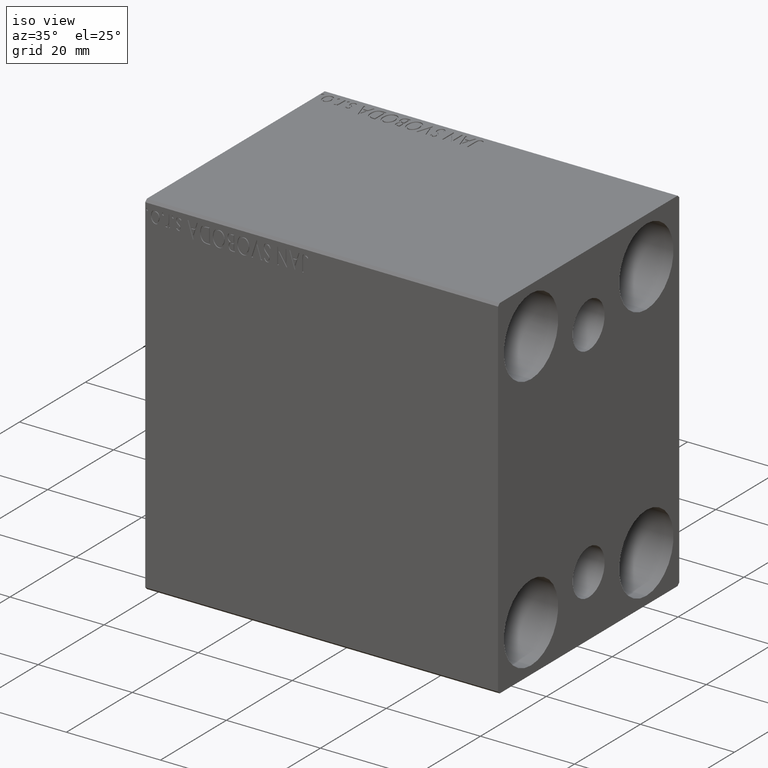
[diagram: clean part render]
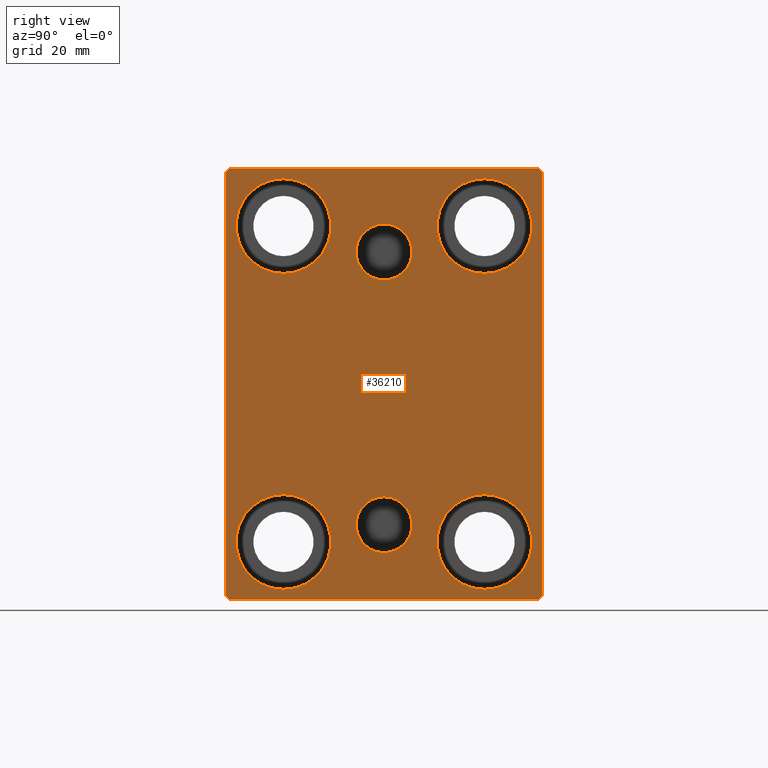
[diagram: tour spotlight — one face highlighted and labeled with its STEP entity id]
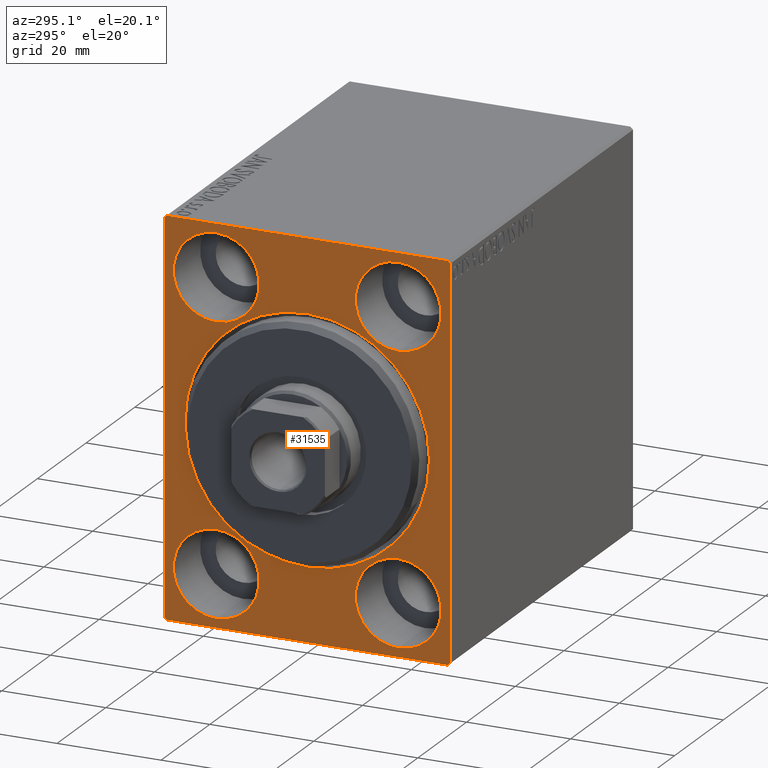
[diagram: tour spotlight — one face highlighted and labeled with its STEP entity id]
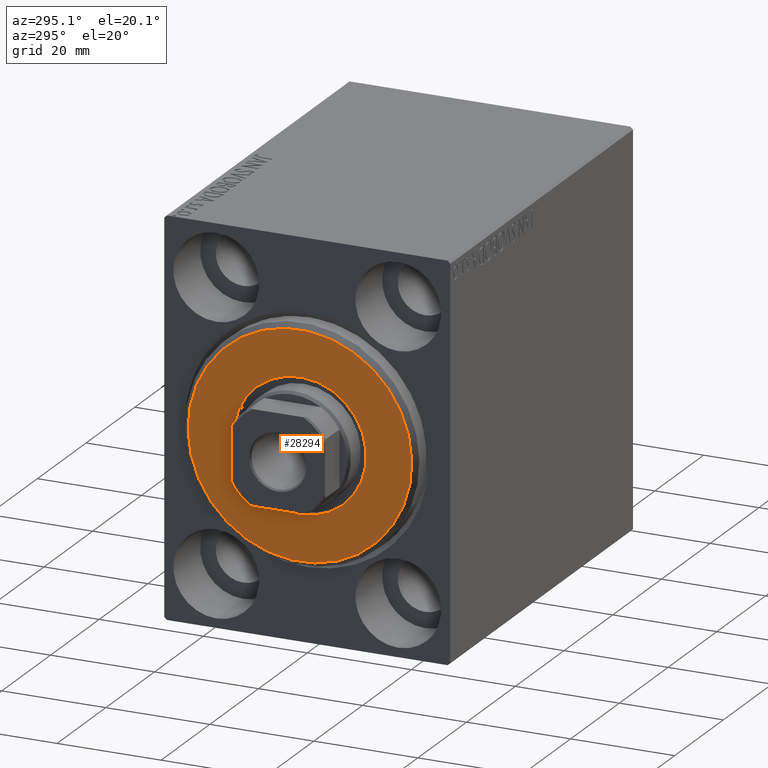
[diagram: tour spotlight — one face highlighted and labeled with its STEP entity id]
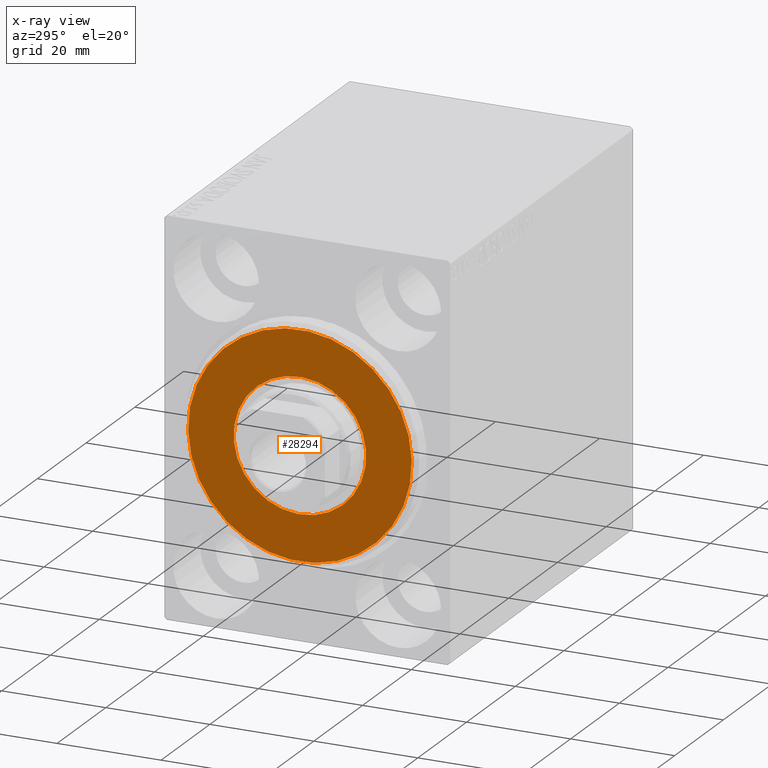
[diagram: x-ray of the same camera — body ghosted, this tour face saturated]
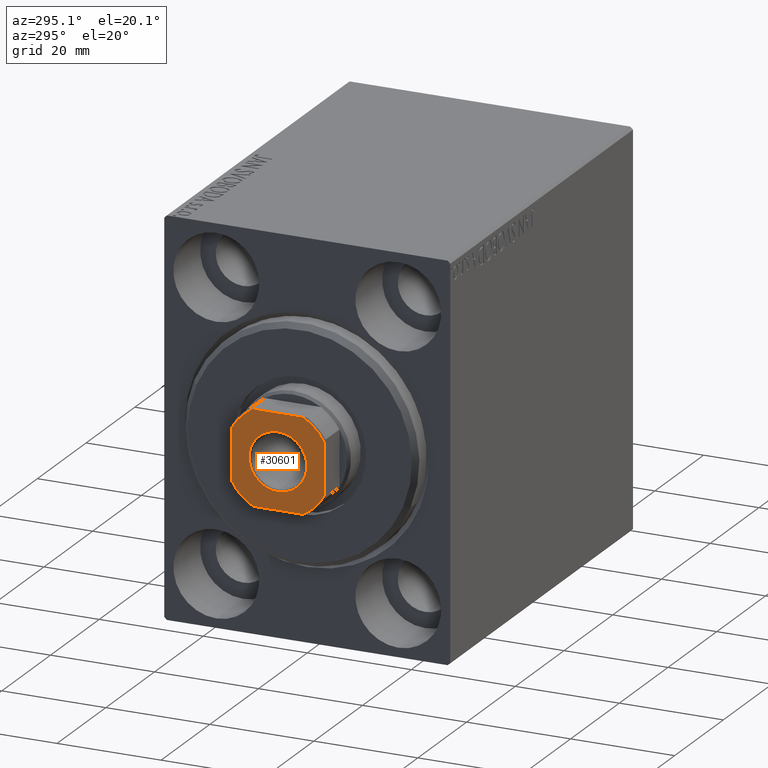
[diagram: tour spotlight — one face highlighted and labeled with its STEP entity id]
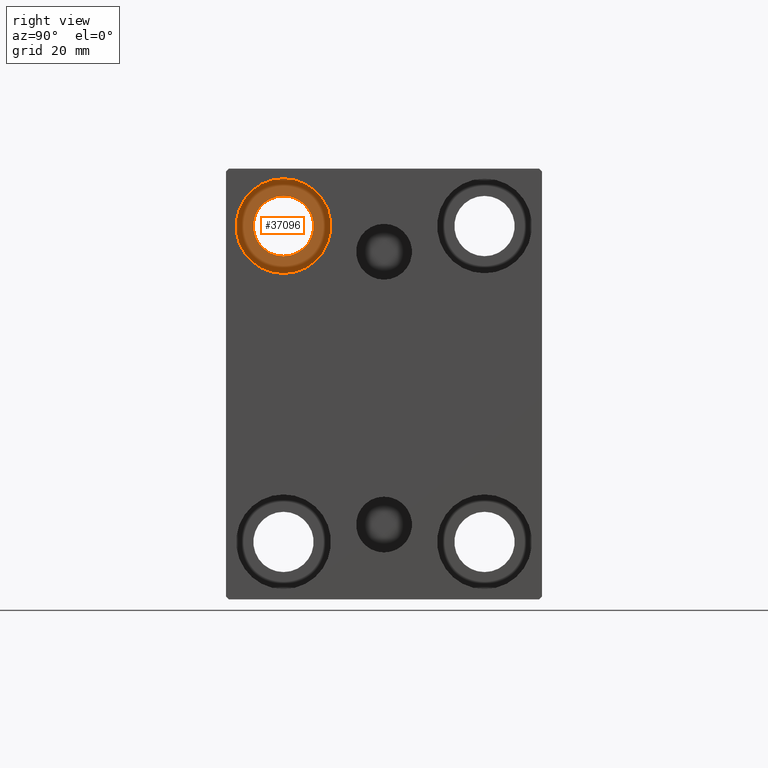
[diagram: tour spotlight — one face highlighted and labeled with its STEP entity id]
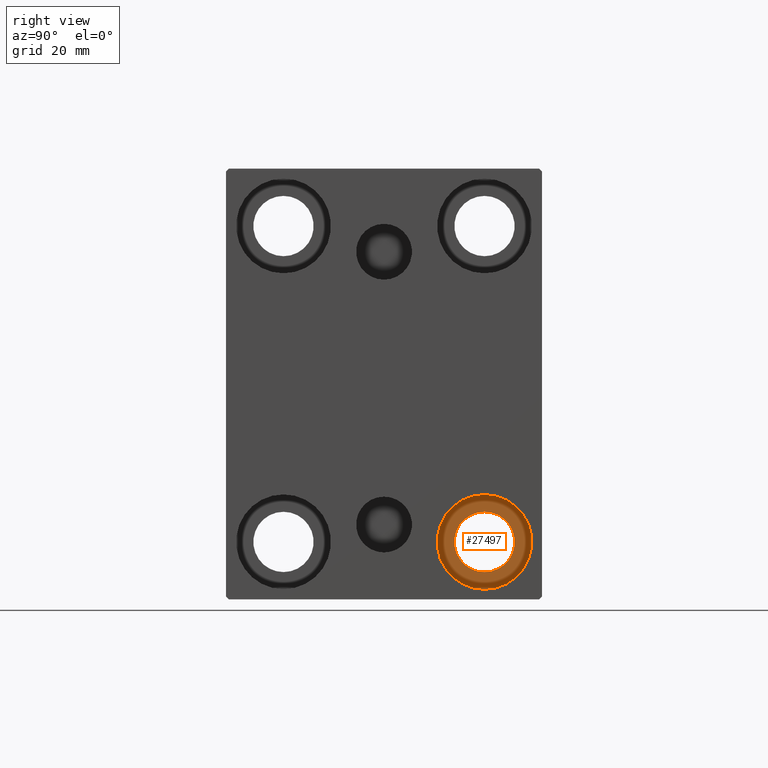
[diagram: tour spotlight — one face highlighted and labeled with its STEP entity id]
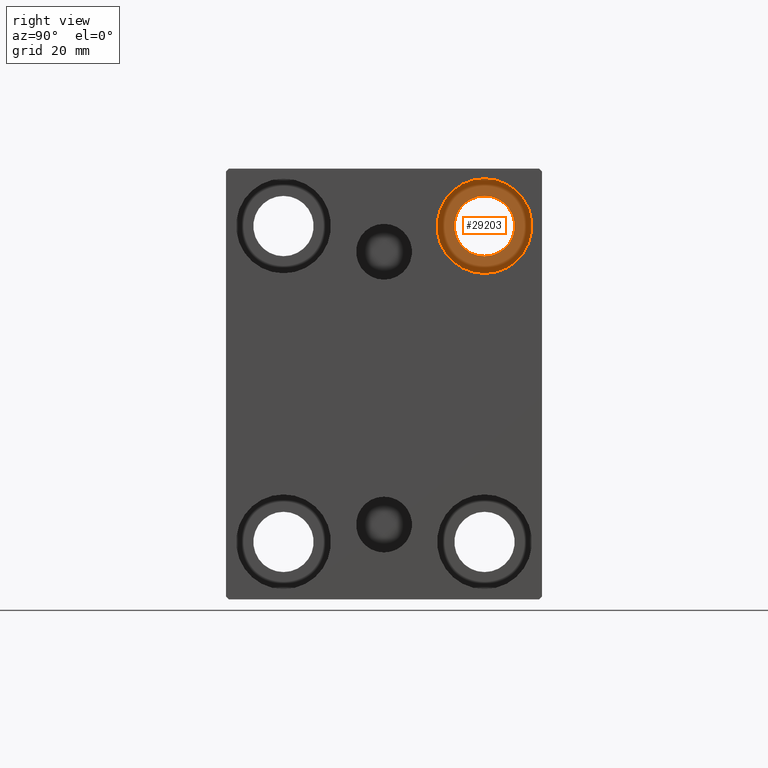
[diagram: tour spotlight — one face highlighted and labeled with its STEP entity id]
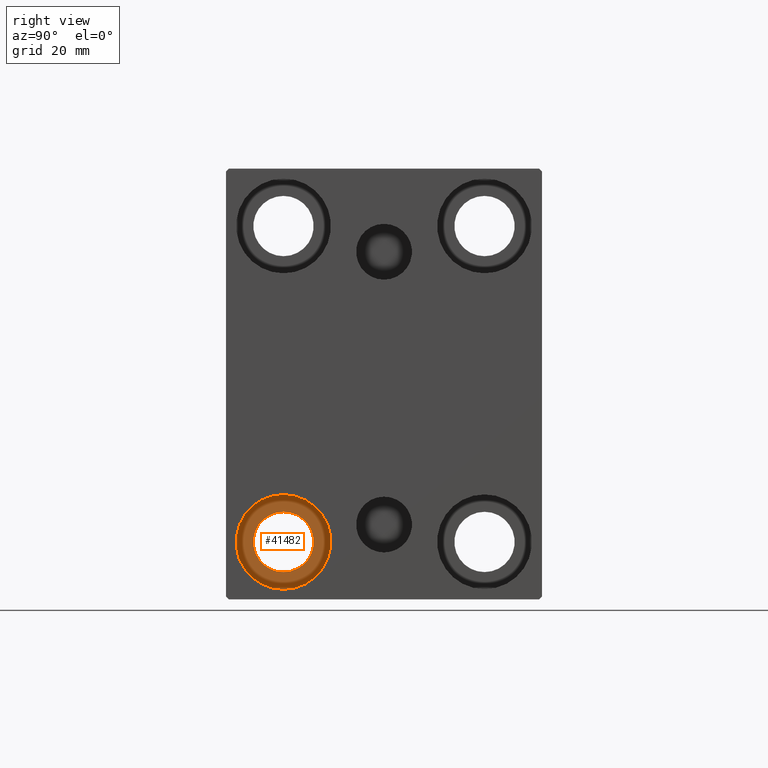
[diagram: tour spotlight — one face highlighted and labeled with its STEP entity id]
A machine part: a face-by-face anatomy tour. The part has 852 B-rep faces; the first image is the clean iso view, then the 8 largest visible faces are spotlighted one at a time (largest first), each with its STEP entity span.

Face 1 — right view, entity #36210. In plain terms, the highlighted planar face has unit normal (1, 0, 0).
Definition (entity closure, byte-faithful):
#178 = AXIS2_PLACEMENT_3D ( 'NONE', #3591, #26959, #37094 ) ;
#231 = LINE ( 'NONE', #16787, #14402 ) ;
#404 = ORIENTED_EDGE ( 'NONE', *, *, #26663, .T. ) ;
#534 = EDGE_CURVE ( 'NONE', #27961, #34364, #13131, .T. ) ;
#663 = CARTESIAN_POINT ( 'NONE',  ( 75.00000000000000000, 3.000384657911015074E-15, -29.35999999999999233 ) ) ;
#2064 = CARTESIAN_POINT ( 'NONE',  ( 75.00000000000000000, 17.49999999999999645, -35.75000000000000711 ) ) ;
#2173 = ORIENTED_EDGE ( 'NONE', *, *, #31189, .T. ) ;
#2397 = ORIENTED_EDGE ( 'NONE', *, *, #28953, .F. ) ;
#2418 = EDGE_CURVE ( 'NONE', #6346, #10122, #42030, .T. ) ;
#2438 = VERTEX_POINT ( 'NONE', #36501 ) ;
#2842 = FACE_BOUND ( 'NONE', #19798, .T. ) ;
#2899 = DIRECTION ( 'NONE',  ( 0.000000000000000000, -1.000000000000000000, -1.261617073437677999E-16 ) ) ;
#2909 = EDGE_LOOP ( 'NONE', ( #13643, #31378 ) ) ;
#3038 = ORIENTED_EDGE ( 'NONE', *, *, #5122, .F. ) ;
#3591 = CARTESIAN_POINT ( 'NONE',  ( 75.00000000000000000, 17.50000000000000355, 27.49999999999999645 ) ) ;
#3890 = AXIS2_PLACEMENT_3D ( 'NONE', #40512, #9901, #23763 ) ;
#4095 = ORIENTED_EDGE ( 'NONE', *, *, #35084, .T. ) ;
#4187 = VERTEX_POINT ( 'NONE', #8183 ) ;
#4762 = EDGE_LOOP ( 'NONE', ( #32043, #2397 ) ) ;
#4838 = LINE ( 'NONE', #18287, #34698 ) ;
#5122 = EDGE_CURVE ( 'NONE', #41451, #37843, #18887, .T. ) ;
#5538 = VERTEX_POINT ( 'NONE', #39420 ) ;
#5566 = DIRECTION ( 'NONE',  ( 0.000000000000000000, 1.000000000000000000, 0.000000000000000000 ) ) ;
#5757 = DIRECTION ( 'NONE',  ( 0.000000000000000000, 0.000000000000000000, 1.000000000000000000 ) ) ;
#6243 = CARTESIAN_POINT ( 'NONE',  ( 75.00000000000000000, 17.49999999999999645, -19.25000000000000355 ) ) ;
#6346 = VERTEX_POINT ( 'NONE', #9026 ) ;
#6461 = DIRECTION ( 'NONE',  ( 1.000000000000000000, 0.000000000000000000, 0.000000000000000000 ) ) ;
#7178 = DIRECTION ( 'NONE',  ( -1.000000000000000000, -0.000000000000000000, -0.000000000000000000 ) ) ;
#7300 = ORIENTED_EDGE ( 'NONE', *, *, #22746, .T. ) ;
#8183 = CARTESIAN_POINT ( 'NONE',  ( 75.00000000000000000, 27.00000000000001066, 37.50000000000000711 ) ) ;
#8314 = ORIENTED_EDGE ( 'NONE', *, *, #13242, .T. ) ;
#8567 = CIRCLE ( 'NONE', #33200, 8.250000000000000000 ) ;
#9026 = CARTESIAN_POINT ( 'NONE',  ( 75.00000000000000000, -17.50000000000000355, -35.75000000000000711 ) ) ;
#9190 = DIRECTION ( 'NONE',  ( -1.000000000000000000, -0.000000000000000000, -0.000000000000000000 ) ) ;
#9469 = CARTESIAN_POINT ( 'NONE',  ( 75.00000000000000000, 0.000000000000000000, 0.000000000000000000 ) ) ;
#9670 = CARTESIAN_POINT ( 'NONE',  ( 75.00000000000000000, 32.25000000000000000, -32.25000000000000000 ) ) ;
#9678 = FACE_BOUND ( 'NONE', #20122, .T. ) ;
#9901 = DIRECTION ( 'NONE',  ( -1.000000000000000000, -0.000000000000000000, -0.000000000000000000 ) ) ;
#9929 = CARTESIAN_POINT ( 'NONE',  ( 75.00000000000000000, -17.50000000000000355, -27.50000000000000355 ) ) ;
#10064 = LINE ( 'NONE', #33849, #29237 ) ;
#10122 = VERTEX_POINT ( 'NONE', #20897 ) ;
#10700 = DIRECTION ( 'NONE',  ( 0.000000000000000000, -9.251858538542970348E-17, 1.000000000000000000 ) ) ;
#11063 = ORIENTED_EDGE ( 'NONE', *, *, #37450, .T. ) ;
#11310 = VERTEX_POINT ( 'NONE', #26135 ) ;
#11368 = CIRCLE ( 'NONE', #31058, 8.249999999999992895 ) ;
#12359 = CARTESIAN_POINT ( 'NONE',  ( 75.00000000000000000, -17.49999999999999645, 19.25000000000000000 ) ) ;
#12538 = EDGE_LOOP ( 'NONE', ( #2173, #41950, #20204, #404, #39671, #4095, #8314, #11063 ) ) ;
#12668 = CARTESIAN_POINT ( 'NONE',  ( 75.00000000000000000, -3.571693674697836683E-15, 18.14000000000000767 ) ) ;
#12773 = VERTEX_POINT ( 'NONE', #36439 ) ;
#12774 = FACE_BOUND ( 'NONE', #35536, .T. ) ;
#12894 = VERTEX_POINT ( 'NONE', #22505 ) ;
#13103 = DIRECTION ( 'NONE',  ( 1.000000000000000000, 0.000000000000000000, -0.000000000000000000 ) ) ;
#13131 = CIRCLE ( 'NONE', #29335, 4.859999999999999432 ) ;
#13242 = EDGE_CURVE ( 'NONE', #5538, #41212, #34482, .T. ) ;
#13583 = DIRECTION ( 'NONE',  ( 0.000000000000000000, 0.000000000000000000, -1.000000000000000000 ) ) ;
#13643 = ORIENTED_EDGE ( 'NONE', *, *, #17018, .T. ) ;
#13901 = DIRECTION ( 'NONE',  ( 0.000000000000000000, -0.7071067811865474617, -0.7071067811865474617 ) ) ;
#14402 = VECTOR ( 'NONE', #2899, 1000.000000000000000 ) ;
#14863 = CIRCLE ( 'NONE', #28227, 8.249999999999992895 ) ;
#14985 = DIRECTION ( 'NONE',  ( -0.000000000000000000, 0.7071067811865474617, -0.7071067811865474617 ) ) ;
#15408 = VERTEX_POINT ( 'NONE', #12359 ) ;
#16301 = DIRECTION ( 'NONE',  ( 1.000000000000000000, 0.000000000000000000, 0.000000000000000000 ) ) ;
#16511 = FACE_OUTER_BOUND ( 'NONE', #12538, .T. ) ;
#16787 = CARTESIAN_POINT ( 'NONE',  ( 75.00000000000000000, 27.49999999999999645, 37.50000000000000711 ) ) ;
#17018 = EDGE_CURVE ( 'NONE', #15408, #32552, #11368, .T. ) ;
#17164 = VERTEX_POINT ( 'NONE', #38230 ) ;
#17203 = DIRECTION ( 'NONE',  ( 0.000000000000000000, 0.000000000000000000, 1.000000000000000000 ) ) ;
#17494 = EDGE_CURVE ( 'NONE', #25383, #17164, #26048, .T. ) ;
#17724 = ORIENTED_EDGE ( 'NONE', *, *, #32988, .F. ) ;
#17927 = AXIS2_PLACEMENT_3D ( 'NONE', #9469, #16301, #36341 ) ;
#18287 = CARTESIAN_POINT ( 'NONE',  ( 75.00000000000000000, -32.25000000000000000, -32.25000000000000000 ) ) ;
#18508 = ORIENTED_EDGE ( 'NONE', *, *, #21712, .T. ) ;
#18887 = CIRCLE ( 'NONE', #24498, 4.859999999999999432 ) ;
#19166 = FACE_BOUND ( 'NONE', #4762, .T. ) ;
#19384 = FACE_BOUND ( 'NONE', #2909, .T. ) ;
#19446 = CARTESIAN_POINT ( 'NONE',  ( 75.00000000000000000, -27.50000000000000355, -37.50000000000000000 ) ) ;
#19602 = DIRECTION ( 'NONE',  ( -1.000000000000000000, -0.000000000000000000, -0.000000000000000000 ) ) ;
#19798 = EDGE_LOOP ( 'NONE', ( #7300, #22563 ) ) ;
#20098 = CARTESIAN_POINT ( 'NONE',  ( 75.00000000000000000, 27.49999999999999645, 37.00000000000001421 ) ) ;
#20122 = EDGE_LOOP ( 'NONE', ( #17724, #3038 ) ) ;
#20204 = ORIENTED_EDGE ( 'NONE', *, *, #37544, .T. ) ;
#20297 = CARTESIAN_POINT ( 'NONE',  ( 75.00000000000000000, -32.25000000000000711, 32.25000000000000711 ) ) ;
#20322 = CARTESIAN_POINT ( 'NONE',  ( 75.00000000000000000, 3.595563002296627957E-15, -19.63999999999999346 ) ) ;
#20897 = CARTESIAN_POINT ( 'NONE',  ( 75.00000000000000000, -17.50000000000000355, -19.25000000000000355 ) ) ;
#20973 = VERTEX_POINT ( 'NONE', #2064 ) ;
#21204 = VECTOR ( 'NONE', #5566, 1000.000000000000000 ) ;
#21338 = EDGE_CURVE ( 'NONE', #32552, #15408, #14863, .T. ) ;
#21481 = AXIS2_PLACEMENT_3D ( 'NONE', #39828, #29705, #23080 ) ;
#21712 = EDGE_CURVE ( 'NONE', #12773, #2438, #31756, .T. ) ;
#22268 = DIRECTION ( 'NONE',  ( 1.000000000000000000, 0.000000000000000000, -0.000000000000000000 ) ) ;
#22505 = CARTESIAN_POINT ( 'NONE',  ( 75.00000000000000000, -27.00000000000001776, 37.50000000000000000 ) ) ;
#22551 = CARTESIAN_POINT ( 'NONE',  ( 75.00000000000000000, 17.49999999999999645, -27.50000000000000355 ) ) ;
#22563 = ORIENTED_EDGE ( 'NONE', *, *, #32188, .T. ) ;
#22746 = EDGE_CURVE ( 'NONE', #20973, #42225, #8567, .T. ) ;
#22771 = CARTESIAN_POINT ( 'NONE',  ( 75.00000000000000000, -3.571693674697836683E-15, 23.00000000000000711 ) ) ;
#23080 = DIRECTION ( 'NONE',  ( 0.000000000000000000, 0.000000000000000000, -1.000000000000000000 ) ) ;
#23226 = DIRECTION ( 'NONE',  ( 0.000000000000000000, 0.000000000000000000, 1.000000000000000000 ) ) ;
#23700 = CARTESIAN_POINT ( 'NONE',  ( 75.00000000000000000, -17.49999999999999645, 27.49999999999999645 ) ) ;
#23763 = DIRECTION ( 'NONE',  ( 0.000000000000000000, 0.000000000000000000, 1.000000000000000000 ) ) ;
#24462 = LINE ( 'NONE', #20297, #34821 ) ;
#24498 = AXIS2_PLACEMENT_3D ( 'NONE', #22771, #6461, #36213 ) ;
#25013 = EDGE_CURVE ( 'NONE', #2438, #12773, #38186, .T. ) ;
#25383 = VERTEX_POINT ( 'NONE', #29609 ) ;
#25943 = CARTESIAN_POINT ( 'NONE',  ( 75.00000000000000000, 32.25000000000019185, 32.24999999999975131 ) ) ;
#26048 = LINE ( 'NONE', #19446, #21204 ) ;
#26135 = CARTESIAN_POINT ( 'NONE',  ( 75.00000000000000000, -27.50000000000000355, -37.00000000000000000 ) ) ;
#26152 = DIRECTION ( 'NONE',  ( 0.000000000000000000, 0.000000000000000000, 1.000000000000000000 ) ) ;
#26210 = PLANE ( 'NONE',  #17927 ) ;
#26364 = CARTESIAN_POINT ( 'NONE',  ( 75.00000000000000000, -17.50000000000000355, -27.50000000000000355 ) ) ;
#26509 = DIRECTION ( 'NONE',  ( 0.000000000000000000, 0.000000000000000000, 1.000000000000000000 ) ) ;
#26630 = LINE ( 'NONE', #9670, #32719 ) ;
#26663 = EDGE_CURVE ( 'NONE', #11310, #25383, #4838, .T. ) ;
#26753 = CARTESIAN_POINT ( 'NONE',  ( 75.00000000000000000, 3.000384657911015074E-15, -24.49999999999999289 ) ) ;
#26959 = DIRECTION ( 'NONE',  ( -1.000000000000000000, -0.000000000000000000, -0.000000000000000000 ) ) ;
#27144 = AXIS2_PLACEMENT_3D ( 'NONE', #9929, #43196, #5757 ) ;
#27805 = VECTOR ( 'NONE', #39819, 1000.000000000000000 ) ;
#27961 = VERTEX_POINT ( 'NONE', #663 ) ;
#28227 = AXIS2_PLACEMENT_3D ( 'NONE', #37475, #33951, #17203 ) ;
#28766 = ORIENTED_EDGE ( 'NONE', *, *, #2418, .T. ) ;
#28953 = EDGE_CURVE ( 'NONE', #34364, #27961, #43190, .T. ) ;
#29237 = VECTOR ( 'NONE', #13583, 1000.000000000000000 ) ;
#29335 = AXIS2_PLACEMENT_3D ( 'NONE', #42106, #22268, #35929 ) ;
#29526 = FACE_BOUND ( 'NONE', #37087, .T. ) ;
#29543 = VERTEX_POINT ( 'NONE', #41989 ) ;
#29609 = CARTESIAN_POINT ( 'NONE',  ( 75.00000000000000000, -27.00000000000000355, -37.50000000000000000 ) ) ;
#29705 = DIRECTION ( 'NONE',  ( 1.000000000000000000, 0.000000000000000000, 0.000000000000000000 ) ) ;
#29823 = DIRECTION ( 'NONE',  ( -1.000000000000000000, -0.000000000000000000, -0.000000000000000000 ) ) ;
#30531 = CARTESIAN_POINT ( 'NONE',  ( 75.00000000000000000, 27.50000000000000355, -37.50000000000000000 ) ) ;
#31058 = AXIS2_PLACEMENT_3D ( 'NONE', #23700, #7178, #37148 ) ;
#31189 = EDGE_CURVE ( 'NONE', #4187, #12894, #231, .T. ) ;
#31378 = ORIENTED_EDGE ( 'NONE', *, *, #21338, .T. ) ;
#31756 = CIRCLE ( 'NONE', #37371, 8.249999999999992895 ) ;
#32043 = ORIENTED_EDGE ( 'NONE', *, *, #534, .F. ) ;
#32188 = EDGE_CURVE ( 'NONE', #42225, #20973, #41902, .T. ) ;
#32347 = LINE ( 'NONE', #25943, #27805 ) ;
#32468 = ORIENTED_EDGE ( 'NONE', *, *, #25013, .T. ) ;
#32552 = VERTEX_POINT ( 'NONE', #40677 ) ;
#32719 = VECTOR ( 'NONE', #40497, 1000.000000000000114 ) ;
#32988 = EDGE_CURVE ( 'NONE', #37843, #41451, #35544, .T. ) ;
#33040 = DIRECTION ( 'NONE',  ( 0.000000000000000000, 0.000000000000000000, 1.000000000000000000 ) ) ;
#33200 = AXIS2_PLACEMENT_3D ( 'NONE', #22551, #29823, #26509 ) ;
#33252 = CARTESIAN_POINT ( 'NONE',  ( 75.00000000000000000, 17.50000000000000355, 27.49999999999999645 ) ) ;
#33849 = CARTESIAN_POINT ( 'NONE',  ( 75.00000000000000000, -27.50000000000000355, 37.50000000000000000 ) ) ;
#33951 = DIRECTION ( 'NONE',  ( -1.000000000000000000, -0.000000000000000000, -0.000000000000000000 ) ) ;
#34364 = VERTEX_POINT ( 'NONE', #20322 ) ;
#34482 = LINE ( 'NONE', #30531, #40851 ) ;
#34519 = EDGE_CURVE ( 'NONE', #10122, #6346, #34888, .T. ) ;
#34698 = VECTOR ( 'NONE', #14985, 1000.000000000000114 ) ;
#34821 = VECTOR ( 'NONE', #13901, 1000.000000000000114 ) ;
#34888 = CIRCLE ( 'NONE', #27144, 8.250000000000000000 ) ;
#35084 = EDGE_CURVE ( 'NONE', #17164, #5538, #26630, .T. ) ;
#35536 = EDGE_LOOP ( 'NONE', ( #28766, #38954 ) ) ;
#35544 = CIRCLE ( 'NONE', #21481, 4.859999999999999432 ) ;
#35929 = DIRECTION ( 'NONE',  ( 0.000000000000000000, 0.000000000000000000, 1.000000000000000000 ) ) ;
#36000 = EDGE_CURVE ( 'NONE', #12894, #29543, #24462, .T. ) ;
#36210 = ADVANCED_FACE ( 'NONE', ( #9678, #19166, #2842, #19384, #29526, #12774, #16511 ), #26210, .T. ) ;
#36213 = DIRECTION ( 'NONE',  ( 0.000000000000000000, 0.000000000000000000, -1.000000000000000000 ) ) ;
#36341 = DIRECTION ( 'NONE',  ( 0.000000000000000000, 0.000000000000000000, -1.000000000000000000 ) ) ;
#36439 = CARTESIAN_POINT ( 'NONE',  ( 75.00000000000000000, 17.50000000000000355, 35.74999999999999289 ) ) ;
#36501 = CARTESIAN_POINT ( 'NONE',  ( 75.00000000000000000, 17.50000000000000355, 19.25000000000000000 ) ) ;
#37087 = EDGE_LOOP ( 'NONE', ( #32468, #18508 ) ) ;
#37094 = DIRECTION ( 'NONE',  ( 0.000000000000000000, 0.000000000000000000, 1.000000000000000000 ) ) ;
#37148 = DIRECTION ( 'NONE',  ( 0.000000000000000000, 0.000000000000000000, 1.000000000000000000 ) ) ;
#37371 = AXIS2_PLACEMENT_3D ( 'NONE', #33252, #19602, #33040 ) ;
#37450 = EDGE_CURVE ( 'NONE', #41212, #4187, #32347, .T. ) ;
#37475 = CARTESIAN_POINT ( 'NONE',  ( 75.00000000000000000, -17.49999999999999645, 27.49999999999999645 ) ) ;
#37544 = EDGE_CURVE ( 'NONE', #29543, #11310, #10064, .T. ) ;
#37843 = VERTEX_POINT ( 'NONE', #12668 ) ;
#38186 = CIRCLE ( 'NONE', #178, 8.249999999999992895 ) ;
#38230 = CARTESIAN_POINT ( 'NONE',  ( 75.00000000000000000, 27.00000000000000355, -37.50000000000000000 ) ) ;
#38954 = ORIENTED_EDGE ( 'NONE', *, *, #34519, .T. ) ;
#39420 = CARTESIAN_POINT ( 'NONE',  ( 75.00000000000000000, 27.50000000000000355, -37.00000000000000000 ) ) ;
#39671 = ORIENTED_EDGE ( 'NONE', *, *, #17494, .T. ) ;
#39819 = DIRECTION ( 'NONE',  ( -0.000000000000000000, -0.7071067811865426878, 0.7071067811865524577 ) ) ;
#39828 = CARTESIAN_POINT ( 'NONE',  ( 75.00000000000000000, -3.571693674697836683E-15, 23.00000000000000711 ) ) ;
#40497 = DIRECTION ( 'NONE',  ( -0.000000000000000000, 0.7071067811865474617, 0.7071067811865474617 ) ) ;
#40512 = CARTESIAN_POINT ( 'NONE',  ( 75.00000000000000000, 17.49999999999999645, -27.50000000000000355 ) ) ;
#40677 = CARTESIAN_POINT ( 'NONE',  ( 75.00000000000000000, -17.49999999999999645, 35.74999999999999289 ) ) ;
#40851 = VECTOR ( 'NONE', #10700, 1000.000000000000000 ) ;
#41081 = AXIS2_PLACEMENT_3D ( 'NONE', #26753, #13103, #23226 ) ;
#41212 = VERTEX_POINT ( 'NONE', #20098 ) ;
#41451 = VERTEX_POINT ( 'NONE', #43402 ) ;
#41902 = CIRCLE ( 'NONE', #3890, 8.250000000000000000 ) ;
#41950 = ORIENTED_EDGE ( 'NONE', *, *, #36000, .T. ) ;
#41989 = CARTESIAN_POINT ( 'NONE',  ( 75.00000000000000000, -27.50000000000000355, 37.00000000000001421 ) ) ;
#42030 = CIRCLE ( 'NONE', #42714, 8.250000000000000000 ) ;
#42106 = CARTESIAN_POINT ( 'NONE',  ( 75.00000000000000000, 3.000384657911015074E-15, -24.49999999999999289 ) ) ;
#42225 = VERTEX_POINT ( 'NONE', #6243 ) ;
#42714 = AXIS2_PLACEMENT_3D ( 'NONE', #26364, #9190, #26152 ) ;
#43190 = CIRCLE ( 'NONE', #41081, 4.859999999999999432 ) ;
#43196 = DIRECTION ( 'NONE',  ( -1.000000000000000000, -0.000000000000000000, -0.000000000000000000 ) ) ;
#43402 = CARTESIAN_POINT ( 'NONE',  ( 75.00000000000000000, -2.976515330312223406E-15, 27.86000000000000654 ) ) ;

Face 2 — auxiliary view, entity #31535. In plain terms, the highlighted planar face has unit normal (1, 0, 0).
Definition (entity closure, byte-faithful):
#63 = AXIS2_PLACEMENT_3D ( 'NONE', #42131, #22512, #33091 ) ;
#371 = EDGE_CURVE ( 'NONE', #19067, #3491, #20163, .T. ) ;
#522 = DIRECTION ( 'NONE',  ( -1.000000000000000000, 0.000000000000000000, 0.000000000000000000 ) ) ;
#674 = AXIS2_PLACEMENT_3D ( 'NONE', #27198, #522, #40636 ) ;
#823 = DIRECTION ( 'NONE',  ( -1.000000000000000000, 0.000000000000000000, 0.000000000000000000 ) ) ;
#949 = EDGE_LOOP ( 'NONE', ( #9621, #4661 ) ) ;
#961 = ORIENTED_EDGE ( 'NONE', *, *, #22633, .F. ) ;
#1122 = DIRECTION ( 'NONE',  ( 0.000000000000000000, 0.000000000000000000, -1.000000000000000000 ) ) ;
#1482 = DIRECTION ( 'NONE',  ( 1.000000000000000000, 0.000000000000000000, 0.000000000000000000 ) ) ;
#1916 = FACE_BOUND ( 'NONE', #22092, .T. ) ;
#2041 = CARTESIAN_POINT ( 'NONE',  ( 0.000000000000000000, 17.49999999999999645, -27.50000000000000355 ) ) ;
#2084 = CARTESIAN_POINT ( 'NONE',  ( 0.000000000000000000, 17.50000000000000355, 35.74999999999999289 ) ) ;
#2628 = CARTESIAN_POINT ( 'NONE',  ( 0.000000000000000000, 17.49999999999999645, -35.75000000000000711 ) ) ;
#2902 = VECTOR ( 'NONE', #29730, 1000.000000000000114 ) ;
#3189 = DIRECTION ( 'NONE',  ( 0.000000000000000000, -1.000000000000000000, -1.261617073437677999E-16 ) ) ;
#3252 = CARTESIAN_POINT ( 'NONE',  ( 0.000000000000000000, -17.49999999999999645, 35.74999999999999289 ) ) ;
#3491 = VERTEX_POINT ( 'NONE', #16549 ) ;
#4275 = VERTEX_POINT ( 'NONE', #16909 ) ;
#4661 = ORIENTED_EDGE ( 'NONE', *, *, #12233, .F. ) ;
#5011 = ORIENTED_EDGE ( 'NONE', *, *, #13437, .F. ) ;
#5234 = CARTESIAN_POINT ( 'NONE',  ( 0.000000000000000000, 0.000000000000000000, 0.000000000000000000 ) ) ;
#5430 = EDGE_CURVE ( 'NONE', #36492, #41629, #41854, .T. ) ;
#5618 = EDGE_CURVE ( 'NONE', #36492, #28878, #40068, .T. ) ;
#5675 = FACE_OUTER_BOUND ( 'NONE', #27973, .T. ) ;
#5798 = DIRECTION ( 'NONE',  ( -1.000000000000000000, 0.000000000000000000, 0.000000000000000000 ) ) ;
#6314 = CARTESIAN_POINT ( 'NONE',  ( 0.000000000000000000, 27.50000000000000355, -37.50000000000000000 ) ) ;
#6477 = CARTESIAN_POINT ( 'NONE',  ( 0.000000000000000000, -27.50000000000000355, 37.00000000000001421 ) ) ;
#6505 = LINE ( 'NONE', #14802, #17613 ) ;
#6735 = AXIS2_PLACEMENT_3D ( 'NONE', #18026, #823, #24191 ) ;
#6834 = LINE ( 'NONE', #20271, #7665 ) ;
#7148 = ORIENTED_EDGE ( 'NONE', *, *, #9794, .F. ) ;
#7656 = EDGE_CURVE ( 'NONE', #11486, #41344, #6834, .T. ) ;
#7665 = VECTOR ( 'NONE', #10141, 1000.000000000000000 ) ;
#8020 = LINE ( 'NONE', #21459, #38831 ) ;
#8363 = DIRECTION ( 'NONE',  ( 0.000000000000000000, 1.000000000000000000, 0.000000000000000000 ) ) ;
#8541 = FACE_BOUND ( 'NONE', #949, .T. ) ;
#8757 = ORIENTED_EDGE ( 'NONE', *, *, #10734, .F. ) ;
#8926 = CARTESIAN_POINT ( 'NONE',  ( 0.000000000000000000, -27.50000000000000355, 37.00000000000001421 ) ) ;
#9063 = VERTEX_POINT ( 'NONE', #31094 ) ;
#9198 = FACE_BOUND ( 'NONE', #32902, .T. ) ;
#9207 = CARTESIAN_POINT ( 'NONE',  ( 0.000000000000000000, -17.50000000000000355, -19.25000000000000355 ) ) ;
#9621 = ORIENTED_EDGE ( 'NONE', *, *, #29892, .F. ) ;
#9794 = EDGE_CURVE ( 'NONE', #4275, #17783, #26019, .T. ) ;
#9872 = DIRECTION ( 'NONE',  ( 0.000000000000000000, 0.000000000000000000, 1.000000000000000000 ) ) ;
#10141 = DIRECTION ( 'NONE',  ( -0.000000000000000000, 0.7071067811865426878, -0.7071067811865524577 ) ) ;
#10574 = AXIS2_PLACEMENT_3D ( 'NONE', #36540, #19142, #9872 ) ;
#10734 = EDGE_CURVE ( 'NONE', #19146, #9063, #19011, .T. ) ;
#10769 = EDGE_LOOP ( 'NONE', ( #5011, #37908 ) ) ;
#10990 = ORIENTED_EDGE ( 'NONE', *, *, #38491, .F. ) ;
#11486 = VERTEX_POINT ( 'NONE', #16432 ) ;
#11552 = AXIS2_PLACEMENT_3D ( 'NONE', #12729, #26165, #29479 ) ;
#11578 = EDGE_CURVE ( 'NONE', #11486, #37921, #6505, .T. ) ;
#12155 = VERTEX_POINT ( 'NONE', #16493 ) ;
#12233 = EDGE_CURVE ( 'NONE', #30100, #26042, #23928, .T. ) ;
#12434 = DIRECTION ( 'NONE',  ( -1.000000000000000000, 0.000000000000000000, 0.000000000000000000 ) ) ;
#12508 = DIRECTION ( 'NONE',  ( 0.000000000000000000, 0.000000000000000000, -1.000000000000000000 ) ) ;
#12545 = EDGE_LOOP ( 'NONE', ( #8757, #10990 ) ) ;
#12729 = CARTESIAN_POINT ( 'NONE',  ( 0.000000000000000000, 17.49999999999999645, -27.50000000000000355 ) ) ;
#13437 = EDGE_CURVE ( 'NONE', #39445, #24149, #33126, .T. ) ;
#13776 = CIRCLE ( 'NONE', #6735, 8.249999999999992895 ) ;
#14311 = VECTOR ( 'NONE', #33196, 1000.000000000000000 ) ;
#14802 = CARTESIAN_POINT ( 'NONE',  ( 0.000000000000000000, 27.49999999999999645, 37.50000000000000711 ) ) ;
#15528 = DIRECTION ( 'NONE',  ( -1.000000000000000000, 0.000000000000000000, 0.000000000000000000 ) ) ;
#15582 = ORIENTED_EDGE ( 'NONE', *, *, #5430, .F. ) ;
#16072 = LINE ( 'NONE', #32600, #2902 ) ;
#16432 = CARTESIAN_POINT ( 'NONE',  ( 0.000000000000000000, 27.00000000000001066, 37.50000000000000711 ) ) ;
#16493 = CARTESIAN_POINT ( 'NONE',  ( 0.000000000000000000, 27.50000000000000355, -37.00000000000000000 ) ) ;
#16516 = EDGE_CURVE ( 'NONE', #3491, #19067, #23280, .T. ) ;
#16549 = CARTESIAN_POINT ( 'NONE',  ( 0.000000000000000000, 0.000000000000000000, 23.50000000000000355 ) ) ;
#16650 = AXIS2_PLACEMENT_3D ( 'NONE', #21618, #24489, #1122 ) ;
#16783 = VECTOR ( 'NONE', #33675, 1000.000000000000114 ) ;
#16909 = CARTESIAN_POINT ( 'NONE',  ( 0.000000000000000000, 17.49999999999999645, -19.25000000000000355 ) ) ;
#17055 = CARTESIAN_POINT ( 'NONE',  ( 0.000000000000000000, -27.50000000000000355, -37.00000000000000000 ) ) ;
#17608 = CARTESIAN_POINT ( 'NONE',  ( 0.000000000000000000, 27.00000000000000355, -37.50000000000000000 ) ) ;
#17613 = VECTOR ( 'NONE', #3189, 1000.000000000000000 ) ;
#17783 = VERTEX_POINT ( 'NONE', #2628 ) ;
#18026 = CARTESIAN_POINT ( 'NONE',  ( 0.000000000000000000, 17.50000000000000355, 27.49999999999999645 ) ) ;
#18064 = CARTESIAN_POINT ( 'NONE',  ( 0.000000000000000000, -27.50000000000000355, -37.50000000000000000 ) ) ;
#18245 = FACE_BOUND ( 'NONE', #10769, .T. ) ;
#19011 = CIRCLE ( 'NONE', #674, 8.249999999999992895 ) ;
#19067 = VERTEX_POINT ( 'NONE', #27895 ) ;
#19142 = DIRECTION ( 'NONE',  ( -1.000000000000000000, 0.000000000000000000, 0.000000000000000000 ) ) ;
#19146 = VERTEX_POINT ( 'NONE', #2084 ) ;
#19238 = DIRECTION ( 'NONE',  ( 0.000000000000000000, 0.000000000000000000, 1.000000000000000000 ) ) ;
#19540 = ORIENTED_EDGE ( 'NONE', *, *, #16516, .T. ) ;
#19963 = ORIENTED_EDGE ( 'NONE', *, *, #5618, .T. ) ;
#20163 = CIRCLE ( 'NONE', #16650, 23.50000000000000355 ) ;
#20271 = CARTESIAN_POINT ( 'NONE',  ( 0.000000000000000000, 27.00000000000001066, 37.50000000000000711 ) ) ;
#20663 = EDGE_CURVE ( 'NONE', #12155, #41629, #16072, .T. ) ;
#21459 = CARTESIAN_POINT ( 'NONE',  ( 0.000000000000000000, -27.50000000000000355, 37.50000000000000000 ) ) ;
#21618 = CARTESIAN_POINT ( 'NONE',  ( 0.000000000000000000, 0.000000000000000000, 0.000000000000000000 ) ) ;
#22092 = EDGE_LOOP ( 'NONE', ( #19540, #23453 ) ) ;
#22413 = FACE_BOUND ( 'NONE', #12545, .T. ) ;
#22484 = CARTESIAN_POINT ( 'NONE',  ( 0.000000000000000000, 27.49999999999999645, 37.00000000000001421 ) ) ;
#22512 = DIRECTION ( 'NONE',  ( 1.000000000000000000, 0.000000000000000000, 0.000000000000000000 ) ) ;
#22633 = EDGE_CURVE ( 'NONE', #27372, #28878, #8020, .T. ) ;
#22874 = AXIS2_PLACEMENT_3D ( 'NONE', #35577, #15528, #42398 ) ;
#23280 = CIRCLE ( 'NONE', #63, 23.50000000000000355 ) ;
#23453 = ORIENTED_EDGE ( 'NONE', *, *, #371, .T. ) ;
#23928 = CIRCLE ( 'NONE', #10574, 8.249999999999992895 ) ;
#24149 = VERTEX_POINT ( 'NONE', #35465 ) ;
#24191 = DIRECTION ( 'NONE',  ( 0.000000000000000000, 0.000000000000000000, 1.000000000000000000 ) ) ;
#24215 = AXIS2_PLACEMENT_3D ( 'NONE', #39511, #26071, #29162 ) ;
#24489 = DIRECTION ( 'NONE',  ( 1.000000000000000000, 0.000000000000000000, 0.000000000000000000 ) ) ;
#25487 = ORIENTED_EDGE ( 'NONE', *, *, #27010, .F. ) ;
#26019 = CIRCLE ( 'NONE', #33757, 8.250000000000000000 ) ;
#26042 = VERTEX_POINT ( 'NONE', #3252 ) ;
#26071 = DIRECTION ( 'NONE',  ( -1.000000000000000000, 0.000000000000000000, 0.000000000000000000 ) ) ;
#26165 = DIRECTION ( 'NONE',  ( -1.000000000000000000, 0.000000000000000000, 0.000000000000000000 ) ) ;
#26363 = LINE ( 'NONE', #6314, #14311 ) ;
#27010 = EDGE_CURVE ( 'NONE', #12155, #41344, #26363, .T. ) ;
#27198 = CARTESIAN_POINT ( 'NONE',  ( 0.000000000000000000, 17.50000000000000355, 27.49999999999999645 ) ) ;
#27244 = ORIENTED_EDGE ( 'NONE', *, *, #11578, .F. ) ;
#27372 = VERTEX_POINT ( 'NONE', #6477 ) ;
#27892 = EDGE_CURVE ( 'NONE', #27372, #37921, #35799, .T. ) ;
#27895 = CARTESIAN_POINT ( 'NONE',  ( 0.000000000000000000, 2.877919977996280715E-15, -23.50000000000000355 ) ) ;
#27973 = EDGE_LOOP ( 'NONE', ( #961, #36090, #27244, #35712, #25487, #28888, #15582, #19963 ) ) ;
#28051 = CARTESIAN_POINT ( 'NONE',  ( 0.000000000000000000, -27.00000000000000355, -37.50000000000000000 ) ) ;
#28453 = EDGE_CURVE ( 'NONE', #17783, #4275, #39710, .T. ) ;
#28878 = VERTEX_POINT ( 'NONE', #17055 ) ;
#28888 = ORIENTED_EDGE ( 'NONE', *, *, #20663, .T. ) ;
#29162 = DIRECTION ( 'NONE',  ( 0.000000000000000000, 0.000000000000000000, 1.000000000000000000 ) ) ;
#29184 = CARTESIAN_POINT ( 'NONE',  ( 0.000000000000000000, -17.50000000000000355, -27.50000000000000355 ) ) ;
#29479 = DIRECTION ( 'NONE',  ( 0.000000000000000000, 0.000000000000000000, 1.000000000000000000 ) ) ;
#29730 = DIRECTION ( 'NONE',  ( 0.000000000000000000, -0.7071067811865474617, -0.7071067811865474617 ) ) ;
#29892 = EDGE_CURVE ( 'NONE', #26042, #30100, #43225, .T. ) ;
#30100 = VERTEX_POINT ( 'NONE', #41041 ) ;
#30927 = EDGE_CURVE ( 'NONE', #24149, #39445, #41872, .T. ) ;
#31014 = AXIS2_PLACEMENT_3D ( 'NONE', #29184, #12434, #42608 ) ;
#31094 = CARTESIAN_POINT ( 'NONE',  ( 0.000000000000000000, 17.50000000000000355, 19.25000000000000000 ) ) ;
#31204 = VECTOR ( 'NONE', #42623, 1000.000000000000114 ) ;
#31535 = ADVANCED_FACE ( 'NONE', ( #1916, #9198, #8541, #22413, #18245, #5675 ), #31685, .F. ) ;
#31685 = PLANE ( 'NONE',  #37617 ) ;
#32600 = CARTESIAN_POINT ( 'NONE',  ( 0.000000000000000000, 27.50000000000000355, -37.00000000000000000 ) ) ;
#32902 = EDGE_LOOP ( 'NONE', ( #7148, #33310 ) ) ;
#33091 = DIRECTION ( 'NONE',  ( 0.000000000000000000, 0.000000000000000000, -1.000000000000000000 ) ) ;
#33126 = CIRCLE ( 'NONE', #31014, 8.250000000000000000 ) ;
#33196 = DIRECTION ( 'NONE',  ( 0.000000000000000000, -9.251858538542970348E-17, 1.000000000000000000 ) ) ;
#33310 = ORIENTED_EDGE ( 'NONE', *, *, #28453, .F. ) ;
#33675 = DIRECTION ( 'NONE',  ( -0.000000000000000000, -0.7071067811865474617, 0.7071067811865474617 ) ) ;
#33757 = AXIS2_PLACEMENT_3D ( 'NONE', #2041, #5798, #19238 ) ;
#33885 = CARTESIAN_POINT ( 'NONE',  ( 0.000000000000000000, -27.00000000000000355, -37.50000000000000000 ) ) ;
#35348 = DIRECTION ( 'NONE',  ( 0.000000000000000000, 0.000000000000000000, -1.000000000000000000 ) ) ;
#35465 = CARTESIAN_POINT ( 'NONE',  ( 0.000000000000000000, -17.50000000000000355, -35.75000000000000711 ) ) ;
#35577 = CARTESIAN_POINT ( 'NONE',  ( 0.000000000000000000, -17.50000000000000355, -27.50000000000000355 ) ) ;
#35712 = ORIENTED_EDGE ( 'NONE', *, *, #7656, .T. ) ;
#35799 = LINE ( 'NONE', #8926, #31204 ) ;
#36090 = ORIENTED_EDGE ( 'NONE', *, *, #27892, .T. ) ;
#36492 = VERTEX_POINT ( 'NONE', #28051 ) ;
#36540 = CARTESIAN_POINT ( 'NONE',  ( 0.000000000000000000, -17.49999999999999645, 27.49999999999999645 ) ) ;
#37617 = AXIS2_PLACEMENT_3D ( 'NONE', #5234, #1482, #12508 ) ;
#37703 = CARTESIAN_POINT ( 'NONE',  ( 0.000000000000000000, -27.00000000000001776, 37.50000000000000000 ) ) ;
#37908 = ORIENTED_EDGE ( 'NONE', *, *, #30927, .F. ) ;
#37921 = VERTEX_POINT ( 'NONE', #37703 ) ;
#38491 = EDGE_CURVE ( 'NONE', #9063, #19146, #13776, .T. ) ;
#38831 = VECTOR ( 'NONE', #35348, 1000.000000000000000 ) ;
#39445 = VERTEX_POINT ( 'NONE', #9207 ) ;
#39511 = CARTESIAN_POINT ( 'NONE',  ( 0.000000000000000000, -17.49999999999999645, 27.49999999999999645 ) ) ;
#39710 = CIRCLE ( 'NONE', #11552, 8.250000000000000000 ) ;
#40068 = LINE ( 'NONE', #33885, #16783 ) ;
#40636 = DIRECTION ( 'NONE',  ( 0.000000000000000000, 0.000000000000000000, 1.000000000000000000 ) ) ;
#41041 = CARTESIAN_POINT ( 'NONE',  ( 0.000000000000000000, -17.49999999999999645, 19.25000000000000000 ) ) ;
#41344 = VERTEX_POINT ( 'NONE', #22484 ) ;
#41365 = VECTOR ( 'NONE', #8363, 1000.000000000000000 ) ;
#41629 = VERTEX_POINT ( 'NONE', #17608 ) ;
#41854 = LINE ( 'NONE', #18064, #41365 ) ;
#41872 = CIRCLE ( 'NONE', #22874, 8.250000000000000000 ) ;
#42131 = CARTESIAN_POINT ( 'NONE',  ( 0.000000000000000000, 0.000000000000000000, 0.000000000000000000 ) ) ;
#42398 = DIRECTION ( 'NONE',  ( 0.000000000000000000, 0.000000000000000000, 1.000000000000000000 ) ) ;
#42608 = DIRECTION ( 'NONE',  ( 0.000000000000000000, 0.000000000000000000, 1.000000000000000000 ) ) ;
#42623 = DIRECTION ( 'NONE',  ( -0.000000000000000000, 0.7071067811865474617, 0.7071067811865474617 ) ) ;
#43225 = CIRCLE ( 'NONE', #24215, 8.249999999999992895 ) ;

Face 3 — auxiliary view, entity #28294. An x-ray twin of the same camera follows (body ghosted, this face saturated) — the face is partly hidden behind the body. In plain terms, the highlighted planar face has unit normal (-1, 0, 0).
Definition (entity closure, byte-faithful):
#1178 = EDGE_LOOP ( 'NONE', ( #29700, #1240 ) ) ;
#1240 = ORIENTED_EDGE ( 'NONE', *, *, #22187, .T. ) ;
#1898 = ORIENTED_EDGE ( 'NONE', *, *, #5576, .T. ) ;
#2608 = DIRECTION ( 'NONE',  ( -1.000000000000000000, 0.000000000000000000, -0.000000000000000000 ) ) ;
#3889 = CARTESIAN_POINT ( 'NONE',  ( 3.000000000000000000, 1.561424668912874914E-15, -12.75000000000000000 ) ) ;
#5576 = EDGE_CURVE ( 'NONE', #15860, #32872, #18193, .T. ) ;
#6457 = AXIS2_PLACEMENT_3D ( 'NONE', #38232, #15702, #18191 ) ;
#9130 = VERTEX_POINT ( 'NONE', #38134 ) ;
#11872 = AXIS2_PLACEMENT_3D ( 'NONE', #32814, #2608, #16070 ) ;
#12997 = DIRECTION ( 'NONE',  ( 0.000000000000000000, 0.000000000000000000, -1.000000000000000000 ) ) ;
#14007 = DIRECTION ( 'NONE',  ( 0.000000000000000000, 0.000000000000000000, -1.000000000000000000 ) ) ;
#14808 = CARTESIAN_POINT ( 'NONE',  ( 3.000000000000000000, 0.000000000000000000, 0.000000000000000000 ) ) ;
#15702 = DIRECTION ( 'NONE',  ( 1.000000000000000000, -0.000000000000000000, 0.000000000000000000 ) ) ;
#15860 = VERTEX_POINT ( 'NONE', #3889 ) ;
#16070 = DIRECTION ( 'NONE',  ( 0.000000000000000000, 0.000000000000000000, -1.000000000000000000 ) ) ;
#18191 = DIRECTION ( 'NONE',  ( 0.000000000000000000, 0.000000000000000000, -1.000000000000000000 ) ) ;
#18193 = CIRCLE ( 'NONE', #11872, 12.75000000000000000 ) ;
#19797 = ORIENTED_EDGE ( 'NONE', *, *, #24768, .T. ) ;
#20567 = CIRCLE ( 'NONE', #26215, 12.75000000000000000 ) ;
#22187 = EDGE_CURVE ( 'NONE', #9130, #31968, #37403, .T. ) ;
#23491 = AXIS2_PLACEMENT_3D ( 'NONE', #29962, #43387, #12997 ) ;
#23699 = DIRECTION ( 'NONE',  ( -1.000000000000000000, 0.000000000000000000, -0.000000000000000000 ) ) ;
#23738 = AXIS2_PLACEMENT_3D ( 'NONE', #14808, #34043, #40867 ) ;
#24768 = EDGE_CURVE ( 'NONE', #32872, #15860, #20567, .T. ) ;
#26215 = AXIS2_PLACEMENT_3D ( 'NONE', #30758, #23699, #14007 ) ;
#27956 = CARTESIAN_POINT ( 'NONE',  ( 3.000000000000000000, 0.000000000000000000, 12.75000000000000000 ) ) ;
#28294 = ADVANCED_FACE ( 'NONE', ( #36348, #32617 ), #29532, .T. ) ;
#29532 = PLANE ( 'NONE',  #23491 ) ;
#29700 = ORIENTED_EDGE ( 'NONE', *, *, #43129, .T. ) ;
#29962 = CARTESIAN_POINT ( 'NONE',  ( 3.000000000000000000, 0.000000000000000000, 0.000000000000000000 ) ) ;
#30758 = CARTESIAN_POINT ( 'NONE',  ( 3.000000000000000000, 0.000000000000000000, 0.000000000000000000 ) ) ;
#31968 = VERTEX_POINT ( 'NONE', #43442 ) ;
#32617 = FACE_BOUND ( 'NONE', #41161, .T. ) ;
#32814 = CARTESIAN_POINT ( 'NONE',  ( 3.000000000000000000, 0.000000000000000000, 0.000000000000000000 ) ) ;
#32872 = VERTEX_POINT ( 'NONE', #27956 ) ;
#34043 = DIRECTION ( 'NONE',  ( 1.000000000000000000, -0.000000000000000000, 0.000000000000000000 ) ) ;
#35701 = CIRCLE ( 'NONE', #23738, 21.50000000000000355 ) ;
#36348 = FACE_OUTER_BOUND ( 'NONE', #1178, .T. ) ;
#37403 = CIRCLE ( 'NONE', #6457, 21.50000000000000355 ) ;
#38134 = CARTESIAN_POINT ( 'NONE',  ( 3.000000000000000000, 2.694222958124177598E-15, -21.50000000000000355 ) ) ;
#38232 = CARTESIAN_POINT ( 'NONE',  ( 3.000000000000000000, 0.000000000000000000, 0.000000000000000000 ) ) ;
#40867 = DIRECTION ( 'NONE',  ( 0.000000000000000000, 0.000000000000000000, -1.000000000000000000 ) ) ;
#41161 = EDGE_LOOP ( 'NONE', ( #19797, #1898 ) ) ;
#43129 = EDGE_CURVE ( 'NONE', #31968, #9130, #35701, .T. ) ;
#43387 = DIRECTION ( 'NONE',  ( 1.000000000000000000, -0.000000000000000000, 0.000000000000000000 ) ) ;
#43442 = CARTESIAN_POINT ( 'NONE',  ( 3.000000000000000000, 0.000000000000000000, 21.50000000000000355 ) ) ;

Face 4 — auxiliary view, entity #30601. In plain terms, the highlighted planar face has unit normal (-1, 0, 0).
Definition (entity closure, byte-faithful):
#60 = CIRCLE ( 'NONE', #746, 10.20000000000000462 ) ;
#296 = AXIS2_PLACEMENT_3D ( 'NONE', #40882, #328, #43159 ) ;
#328 = DIRECTION ( 'NONE',  ( -0.000000000000000000, 0.000000000000000000, 1.000000000000000000 ) ) ;
#746 = AXIS2_PLACEMENT_3D ( 'NONE', #8354, #35236, #21782 ) ;
#1722 = EDGE_CURVE ( 'NONE', #25566, #16097, #28258, .T. ) ;
#1741 = FACE_OUTER_BOUND ( 'NONE', #4769, .T. ) ;
#2137 = VECTOR ( 'NONE', #21653, 1000.000000000000000 ) ;
#2978 = CARTESIAN_POINT ( 'NONE',  ( -8.999999999999998224, -4.799999999999999822, 77.00000000000001421 ) ) ;
#3422 = CIRCLE ( 'NONE', #25958, 10.20000000000000462 ) ;
#3638 = ORIENTED_EDGE ( 'NONE', *, *, #5426, .T. ) ;
#3672 = AXIS2_PLACEMENT_3D ( 'NONE', #36876, #13310, #30486 ) ;
#3702 = DIRECTION ( 'NONE',  ( -0.000000000000000000, 0.000000000000000000, 1.000000000000000000 ) ) ;
#3928 = VERTEX_POINT ( 'NONE', #22100 ) ;
#4131 = VERTEX_POINT ( 'NONE', #23841 ) ;
#4470 = ORIENTED_EDGE ( 'NONE', *, *, #19397, .T. ) ;
#4769 = EDGE_LOOP ( 'NONE', ( #3638, #12465, #35325, #38436, #28994, #10227, #7566, #4470 ) ) ;
#5426 = EDGE_CURVE ( 'NONE', #18142, #10462, #31505, .T. ) ;
#6237 = DIRECTION ( 'NONE',  ( 0.000000000000000000, -0.000000000000000000, -1.000000000000000000 ) ) ;
#6662 = CARTESIAN_POINT ( 'NONE',  ( 0.000000000000000000, 0.000000000000000000, 77.00000000000001421 ) ) ;
#6913 = EDGE_CURVE ( 'NONE', #10462, #4131, #3422, .T. ) ;
#6988 = CARTESIAN_POINT ( 'NONE',  ( 4.800000000000006928, -9.000000000000001776, 77.00000000000001421 ) ) ;
#7105 = EDGE_CURVE ( 'NONE', #4131, #39717, #14464, .T. ) ;
#7450 = DIRECTION ( 'NONE',  ( 1.000000000000000000, 0.000000000000000000, 0.000000000000000000 ) ) ;
#7566 = ORIENTED_EDGE ( 'NONE', *, *, #18366, .T. ) ;
#8082 = CIRCLE ( 'NONE', #34128, 10.19999999999999929 ) ;
#8354 = CARTESIAN_POINT ( 'NONE',  ( 0.000000000000000000, 0.000000000000000000, 77.00000000000001421 ) ) ;
#8565 = DIRECTION ( 'NONE',  ( 1.000000000000000000, 0.000000000000000000, 0.000000000000000000 ) ) ;
#8630 = CARTESIAN_POINT ( 'NONE',  ( -9.000000000000001776, 4.799999999999986500, 77.00000000000001421 ) ) ;
#9752 = DIRECTION ( 'NONE',  ( 1.000000000000000000, 0.000000000000000000, 0.000000000000000000 ) ) ;
#10227 = ORIENTED_EDGE ( 'NONE', *, *, #31634, .T. ) ;
#10331 = CARTESIAN_POINT ( 'NONE',  ( 0.000000000000000000, 0.000000000000000000, 77.00000000000001421 ) ) ;
#10462 = VERTEX_POINT ( 'NONE', #34082 ) ;
#10896 = VERTEX_POINT ( 'NONE', #43192 ) ;
#11511 = CARTESIAN_POINT ( 'NONE',  ( -9.000000000000001776, 8.999999999999998224, 77.00000000000001421 ) ) ;
#11613 = CIRCLE ( 'NONE', #40474, 10.19999999999999396 ) ;
#11670 = CARTESIAN_POINT ( 'NONE',  ( 8.999999999999998224, 8.999999999999998224, 77.00000000000001421 ) ) ;
#12465 = ORIENTED_EDGE ( 'NONE', *, *, #6913, .T. ) ;
#13310 = DIRECTION ( 'NONE',  ( 0.000000000000000000, -0.000000000000000000, -1.000000000000000000 ) ) ;
#14464 = LINE ( 'NONE', #38037, #25261 ) ;
#14534 = DIRECTION ( 'NONE',  ( -1.927470528863119049E-16, 1.000000000000000000, -0.000000000000000000 ) ) ;
#15779 = VERTEX_POINT ( 'NONE', #6988 ) ;
#16097 = VERTEX_POINT ( 'NONE', #2978 ) ;
#16677 = CARTESIAN_POINT ( 'NONE',  ( 9.000000000000001776, -4.800000000000007816, 77.00000000000001421 ) ) ;
#16746 = VECTOR ( 'NONE', #14534, 1000.000000000000000 ) ;
#18142 = VERTEX_POINT ( 'NONE', #16677 ) ;
#18366 = EDGE_CURVE ( 'NONE', #3928, #15779, #21434, .T. ) ;
#19353 = CARTESIAN_POINT ( 'NONE',  ( 0.000000000000000000, 0.000000000000000000, 77.00000000000001421 ) ) ;
#19397 = EDGE_CURVE ( 'NONE', #15779, #18142, #60, .T. ) ;
#20609 = CARTESIAN_POINT ( 'NONE',  ( -5.550000000000013145, 6.796789735267826558E-16, 77.00000000000001421 ) ) ;
#20852 = DIRECTION ( 'NONE',  ( -1.000000000000000000, -0.000000000000000000, -0.000000000000000000 ) ) ;
#21434 = LINE ( 'NONE', #31584, #2137 ) ;
#21570 = CIRCLE ( 'NONE', #39166, 5.550000000000013145 ) ;
#21653 = DIRECTION ( 'NONE',  ( 1.000000000000000000, 0.000000000000000000, 0.000000000000000000 ) ) ;
#21782 = DIRECTION ( 'NONE',  ( 1.000000000000000000, 0.000000000000000000, 0.000000000000000000 ) ) ;
#22100 = CARTESIAN_POINT ( 'NONE',  ( -4.799999999999995381, -9.000000000000001776, 77.00000000000001421 ) ) ;
#23030 = VECTOR ( 'NONE', #26786, 1000.000000000000000 ) ;
#23841 = CARTESIAN_POINT ( 'NONE',  ( 4.800000000000012257, 8.999999999999998224, 77.00000000000001421 ) ) ;
#24712 = VERTEX_POINT ( 'NONE', #20609 ) ;
#25006 = EDGE_CURVE ( 'NONE', #24712, #10896, #30458, .T. ) ;
#25261 = VECTOR ( 'NONE', #20852, 1000.000000000000000 ) ;
#25566 = VERTEX_POINT ( 'NONE', #8630 ) ;
#25958 = AXIS2_PLACEMENT_3D ( 'NONE', #19353, #38532, #8565 ) ;
#26786 = DIRECTION ( 'NONE',  ( 1.927470528863119049E-16, -1.000000000000000000, 0.000000000000000000 ) ) ;
#28258 = LINE ( 'NONE', #11511, #23030 ) ;
#28549 = CARTESIAN_POINT ( 'NONE',  ( -4.799999999999990941, 8.999999999999998224, 77.00000000000001421 ) ) ;
#28640 = PLANE ( 'NONE',  #296 ) ;
#28994 = ORIENTED_EDGE ( 'NONE', *, *, #1722, .T. ) ;
#30458 = CIRCLE ( 'NONE', #3672, 5.550000000000013145 ) ;
#30486 = DIRECTION ( 'NONE',  ( 1.000000000000000000, 0.000000000000000000, 0.000000000000000000 ) ) ;
#30601 = ADVANCED_FACE ( 'NONE', ( #31949, #1741 ), #28640, .T. ) ;
#31505 = LINE ( 'NONE', #11670, #16746 ) ;
#31584 = CARTESIAN_POINT ( 'NONE',  ( -8.999999999999998224, -9.000000000000001776, 77.00000000000001421 ) ) ;
#31634 = EDGE_CURVE ( 'NONE', #16097, #3928, #8082, .T. ) ;
#31949 = FACE_BOUND ( 'NONE', #35127, .T. ) ;
#32580 = ORIENTED_EDGE ( 'NONE', *, *, #25006, .T. ) ;
#34082 = CARTESIAN_POINT ( 'NONE',  ( 8.999999999999998224, 4.800000000000010481, 77.00000000000001421 ) ) ;
#34128 = AXIS2_PLACEMENT_3D ( 'NONE', #43328, #36290, #40244 ) ;
#35127 = EDGE_LOOP ( 'NONE', ( #35999, #32580 ) ) ;
#35236 = DIRECTION ( 'NONE',  ( -0.000000000000000000, 0.000000000000000000, 1.000000000000000000 ) ) ;
#35325 = ORIENTED_EDGE ( 'NONE', *, *, #7105, .T. ) ;
#35999 = ORIENTED_EDGE ( 'NONE', *, *, #41186, .T. ) ;
#36290 = DIRECTION ( 'NONE',  ( -0.000000000000000000, 0.000000000000000000, 1.000000000000000000 ) ) ;
#36876 = CARTESIAN_POINT ( 'NONE',  ( 0.000000000000000000, 0.000000000000000000, 77.00000000000001421 ) ) ;
#37102 = EDGE_CURVE ( 'NONE', #39717, #25566, #11613, .T. ) ;
#38037 = CARTESIAN_POINT ( 'NONE',  ( -9.000000000000001776, 8.999999999999998224, 77.00000000000001421 ) ) ;
#38436 = ORIENTED_EDGE ( 'NONE', *, *, #37102, .T. ) ;
#38532 = DIRECTION ( 'NONE',  ( -0.000000000000000000, 0.000000000000000000, 1.000000000000000000 ) ) ;
#39166 = AXIS2_PLACEMENT_3D ( 'NONE', #6662, #6237, #9752 ) ;
#39717 = VERTEX_POINT ( 'NONE', #28549 ) ;
#40244 = DIRECTION ( 'NONE',  ( 1.000000000000000000, 0.000000000000000000, 0.000000000000000000 ) ) ;
#40474 = AXIS2_PLACEMENT_3D ( 'NONE', #10331, #3702, #7450 ) ;
#40882 = CARTESIAN_POINT ( 'NONE',  ( 0.000000000000000000, 0.000000000000000000, 77.00000000000001421 ) ) ;
#41186 = EDGE_CURVE ( 'NONE', #10896, #24712, #21570, .T. ) ;
#43159 = DIRECTION ( 'NONE',  ( 1.000000000000000000, 0.000000000000000000, 0.000000000000000000 ) ) ;
#43192 = CARTESIAN_POINT ( 'NONE',  ( 5.550000000000013145, 0.000000000000000000, 77.00000000000001421 ) ) ;
#43328 = CARTESIAN_POINT ( 'NONE',  ( 0.000000000000000000, 0.000000000000000000, 77.00000000000001421 ) ) ;

Face 5 — right view, entity #37096. In plain terms, the highlighted planar face has unit normal (1, 0, 0).
Definition (entity closure, byte-faithful):
#488 = AXIS2_PLACEMENT_3D ( 'NONE', #17284, #27419, #4483 ) ;
#2061 = EDGE_CURVE ( 'NONE', #20977, #2472, #40608, .T. ) ;
#2472 = VERTEX_POINT ( 'NONE', #33197 ) ;
#2532 = VERTEX_POINT ( 'NONE', #15101 ) ;
#2607 = CARTESIAN_POINT ( 'NONE',  ( 64.00000000000000000, -17.49999999999999645, 27.49999999999999645 ) ) ;
#4421 = EDGE_LOOP ( 'NONE', ( #43206, #29277 ) ) ;
#4483 = DIRECTION ( 'NONE',  ( 0.000000000000000000, 0.000000000000000000, -1.000000000000000000 ) ) ;
#6590 = DIRECTION ( 'NONE',  ( 1.000000000000000000, 0.000000000000000000, -0.000000000000000000 ) ) ;
#9900 = CARTESIAN_POINT ( 'NONE',  ( 64.00000000000000000, 0.000000000000000000, 0.000000000000000000 ) ) ;
#11786 = ORIENTED_EDGE ( 'NONE', *, *, #41925, .T. ) ;
#12580 = DIRECTION ( 'NONE',  ( 0.000000000000000000, 0.000000000000000000, -1.000000000000000000 ) ) ;
#13531 = CIRCLE ( 'NONE', #14223, 8.249999999999992895 ) ;
#14223 = AXIS2_PLACEMENT_3D ( 'NONE', #2607, #16068, #29511 ) ;
#15101 = CARTESIAN_POINT ( 'NONE',  ( 64.00000000000000000, -17.49999999999999645, 22.25000000000000000 ) ) ;
#15373 = EDGE_CURVE ( 'NONE', #20081, #2532, #21995, .T. ) ;
#16068 = DIRECTION ( 'NONE',  ( -1.000000000000000000, -0.000000000000000000, -0.000000000000000000 ) ) ;
#16305 = PLANE ( 'NONE',  #26390 ) ;
#16517 = FACE_BOUND ( 'NONE', #31667, .T. ) ;
#17284 = CARTESIAN_POINT ( 'NONE',  ( 64.00000000000000000, -17.49999999999999645, 27.49999999999999645 ) ) ;
#20081 = VERTEX_POINT ( 'NONE', #26085 ) ;
#20977 = VERTEX_POINT ( 'NONE', #26090 ) ;
#21995 = CIRCLE ( 'NONE', #28930, 5.249999999999997335 ) ;
#22266 = CARTESIAN_POINT ( 'NONE',  ( 64.00000000000000000, -17.49999999999999645, 27.49999999999999645 ) ) ;
#23358 = EDGE_CURVE ( 'NONE', #2472, #20977, #13531, .T. ) ;
#26085 = CARTESIAN_POINT ( 'NONE',  ( 64.00000000000000000, -17.49999999999999645, 32.74999999999999289 ) ) ;
#26090 = CARTESIAN_POINT ( 'NONE',  ( 64.00000000000000000, -17.49999999999999645, 35.74999999999999289 ) ) ;
#26390 = AXIS2_PLACEMENT_3D ( 'NONE', #9900, #6590, #36564 ) ;
#27240 = AXIS2_PLACEMENT_3D ( 'NONE', #38331, #42071, #29075 ) ;
#27419 = DIRECTION ( 'NONE',  ( -1.000000000000000000, -0.000000000000000000, -0.000000000000000000 ) ) ;
#28930 = AXIS2_PLACEMENT_3D ( 'NONE', #22266, #32631, #12580 ) ;
#29075 = DIRECTION ( 'NONE',  ( 0.000000000000000000, 0.000000000000000000, 1.000000000000000000 ) ) ;
#29277 = ORIENTED_EDGE ( 'NONE', *, *, #2061, .F. ) ;
#29511 = DIRECTION ( 'NONE',  ( 0.000000000000000000, 0.000000000000000000, 1.000000000000000000 ) ) ;
#31667 = EDGE_LOOP ( 'NONE', ( #35144, #11786 ) ) ;
#32631 = DIRECTION ( 'NONE',  ( -1.000000000000000000, -0.000000000000000000, -0.000000000000000000 ) ) ;
#33197 = CARTESIAN_POINT ( 'NONE',  ( 64.00000000000000000, -17.49999999999999645, 19.25000000000000000 ) ) ;
#35144 = ORIENTED_EDGE ( 'NONE', *, *, #15373, .T. ) ;
#36564 = DIRECTION ( 'NONE',  ( 0.000000000000000000, 0.000000000000000000, 1.000000000000000000 ) ) ;
#37079 = CIRCLE ( 'NONE', #488, 5.249999999999997335 ) ;
#37096 = ADVANCED_FACE ( 'NONE', ( #39656, #16517 ), #16305, .T. ) ;
#38331 = CARTESIAN_POINT ( 'NONE',  ( 64.00000000000000000, -17.49999999999999645, 27.49999999999999645 ) ) ;
#39656 = FACE_OUTER_BOUND ( 'NONE', #4421, .T. ) ;
#40608 = CIRCLE ( 'NONE', #27240, 8.249999999999992895 ) ;
#41925 = EDGE_CURVE ( 'NONE', #2532, #20081, #37079, .T. ) ;
#42071 = DIRECTION ( 'NONE',  ( -1.000000000000000000, -0.000000000000000000, -0.000000000000000000 ) ) ;
#43206 = ORIENTED_EDGE ( 'NONE', *, *, #23358, .F. ) ;

Face 6 — right view, entity #27497. In plain terms, the highlighted planar face has unit normal (1, 0, 0).
Definition (entity closure, byte-faithful):
#516 = EDGE_CURVE ( 'NONE', #16612, #11761, #6116, .T. ) ;
#793 = DIRECTION ( 'NONE',  ( -1.000000000000000000, -0.000000000000000000, -0.000000000000000000 ) ) ;
#822 = CARTESIAN_POINT ( 'NONE',  ( 64.00000000000000000, 17.49999999999999645, -27.50000000000000355 ) ) ;
#1766 = DIRECTION ( 'NONE',  ( -1.000000000000000000, -0.000000000000000000, -0.000000000000000000 ) ) ;
#2305 = VERTEX_POINT ( 'NONE', #38503 ) ;
#2750 = ORIENTED_EDGE ( 'NONE', *, *, #7156, .T. ) ;
#6116 = CIRCLE ( 'NONE', #32162, 8.250000000000000000 ) ;
#7156 = EDGE_CURVE ( 'NONE', #39587, #2305, #29491, .T. ) ;
#7659 = DIRECTION ( 'NONE',  ( 0.000000000000000000, 0.000000000000000000, 1.000000000000000000 ) ) ;
#8427 = CARTESIAN_POINT ( 'NONE',  ( 64.00000000000000000, 17.49999999999999645, -27.50000000000000355 ) ) ;
#11181 = EDGE_LOOP ( 'NONE', ( #35441, #2750 ) ) ;
#11336 = AXIS2_PLACEMENT_3D ( 'NONE', #8427, #39268, #12172 ) ;
#11383 = DIRECTION ( 'NONE',  ( 0.000000000000000000, 0.000000000000000000, -1.000000000000000000 ) ) ;
#11761 = VERTEX_POINT ( 'NONE', #32860 ) ;
#12172 = DIRECTION ( 'NONE',  ( 0.000000000000000000, 0.000000000000000000, 1.000000000000000000 ) ) ;
#14247 = CARTESIAN_POINT ( 'NONE',  ( 64.00000000000000000, 17.49999999999999645, -27.50000000000000355 ) ) ;
#15175 = CIRCLE ( 'NONE', #36957, 5.249999999999997335 ) ;
#15228 = DIRECTION ( 'NONE',  ( 0.000000000000000000, 0.000000000000000000, -1.000000000000000000 ) ) ;
#16612 = VERTEX_POINT ( 'NONE', #25603 ) ;
#17605 = ORIENTED_EDGE ( 'NONE', *, *, #516, .F. ) ;
#18526 = CARTESIAN_POINT ( 'NONE',  ( 64.00000000000000000, 17.49999999999999645, -27.50000000000000355 ) ) ;
#18728 = FACE_OUTER_BOUND ( 'NONE', #31457, .T. ) ;
#19413 = DIRECTION ( 'NONE',  ( -1.000000000000000000, -0.000000000000000000, -0.000000000000000000 ) ) ;
#19481 = ORIENTED_EDGE ( 'NONE', *, *, #21234, .F. ) ;
#21234 = EDGE_CURVE ( 'NONE', #11761, #16612, #28954, .T. ) ;
#21544 = PLANE ( 'NONE',  #26278 ) ;
#24799 = CARTESIAN_POINT ( 'NONE',  ( 64.00000000000000000, 17.49999999999999645, -32.75000000000000000 ) ) ;
#25603 = CARTESIAN_POINT ( 'NONE',  ( 64.00000000000000000, 17.49999999999999645, -19.25000000000000355 ) ) ;
#26278 = AXIS2_PLACEMENT_3D ( 'NONE', #822, #38512, #7659 ) ;
#27497 = ADVANCED_FACE ( 'NONE', ( #18728, #27721 ), #21544, .T. ) ;
#27721 = FACE_BOUND ( 'NONE', #11181, .T. ) ;
#28677 = DIRECTION ( 'NONE',  ( 0.000000000000000000, 0.000000000000000000, 1.000000000000000000 ) ) ;
#28954 = CIRCLE ( 'NONE', #11336, 8.250000000000000000 ) ;
#29491 = CIRCLE ( 'NONE', #35110, 5.249999999999997335 ) ;
#31457 = EDGE_LOOP ( 'NONE', ( #19481, #17605 ) ) ;
#32162 = AXIS2_PLACEMENT_3D ( 'NONE', #32421, #19413, #28677 ) ;
#32421 = CARTESIAN_POINT ( 'NONE',  ( 64.00000000000000000, 17.49999999999999645, -27.50000000000000355 ) ) ;
#32753 = EDGE_CURVE ( 'NONE', #2305, #39587, #15175, .T. ) ;
#32860 = CARTESIAN_POINT ( 'NONE',  ( 64.00000000000000000, 17.49999999999999645, -35.75000000000000711 ) ) ;
#35110 = AXIS2_PLACEMENT_3D ( 'NONE', #14247, #793, #11383 ) ;
#35441 = ORIENTED_EDGE ( 'NONE', *, *, #32753, .T. ) ;
#36957 = AXIS2_PLACEMENT_3D ( 'NONE', #18526, #1766, #15228 ) ;
#38503 = CARTESIAN_POINT ( 'NONE',  ( 64.00000000000000000, 17.49999999999999645, -22.25000000000000355 ) ) ;
#38512 = DIRECTION ( 'NONE',  ( 1.000000000000000000, 0.000000000000000000, -0.000000000000000000 ) ) ;
#39268 = DIRECTION ( 'NONE',  ( -1.000000000000000000, -0.000000000000000000, -0.000000000000000000 ) ) ;
#39587 = VERTEX_POINT ( 'NONE', #24799 ) ;

Face 7 — right view, entity #29203. In plain terms, the highlighted planar face has unit normal (1, 0, 0).
Definition (entity closure, byte-faithful):
#1057 = CARTESIAN_POINT ( 'NONE',  ( 64.00000000000000000, 17.50000000000000355, 19.25000000000000000 ) ) ;
#2862 = DIRECTION ( 'NONE',  ( 0.000000000000000000, 0.000000000000000000, -1.000000000000000000 ) ) ;
#3992 = FACE_BOUND ( 'NONE', #15696, .T. ) ;
#4207 = CARTESIAN_POINT ( 'NONE',  ( 64.00000000000000000, 0.000000000000000000, 0.000000000000000000 ) ) ;
#6161 = CARTESIAN_POINT ( 'NONE',  ( 64.00000000000000000, 17.50000000000000355, 27.49999999999999645 ) ) ;
#6381 = ORIENTED_EDGE ( 'NONE', *, *, #39215, .F. ) ;
#6593 = CARTESIAN_POINT ( 'NONE',  ( 64.00000000000000000, 17.50000000000000355, 27.49999999999999645 ) ) ;
#8111 = VERTEX_POINT ( 'NONE', #25265 ) ;
#10211 = VERTEX_POINT ( 'NONE', #1057 ) ;
#10556 = DIRECTION ( 'NONE',  ( 0.000000000000000000, 0.000000000000000000, 1.000000000000000000 ) ) ;
#11292 = CARTESIAN_POINT ( 'NONE',  ( 64.00000000000000000, 17.50000000000000355, 22.25000000000000000 ) ) ;
#11707 = CIRCLE ( 'NONE', #33504, 8.249999999999992895 ) ;
#11954 = DIRECTION ( 'NONE',  ( 0.000000000000000000, 0.000000000000000000, -1.000000000000000000 ) ) ;
#13005 = CIRCLE ( 'NONE', #27079, 8.249999999999992895 ) ;
#14351 = DIRECTION ( 'NONE',  ( 0.000000000000000000, 0.000000000000000000, 1.000000000000000000 ) ) ;
#15696 = EDGE_LOOP ( 'NONE', ( #30753, #42336 ) ) ;
#16584 = EDGE_CURVE ( 'NONE', #8111, #23768, #30367, .T. ) ;
#17206 = VERTEX_POINT ( 'NONE', #21914 ) ;
#17660 = DIRECTION ( 'NONE',  ( 1.000000000000000000, 0.000000000000000000, -0.000000000000000000 ) ) ;
#19605 = DIRECTION ( 'NONE',  ( -1.000000000000000000, -0.000000000000000000, -0.000000000000000000 ) ) ;
#19624 = CARTESIAN_POINT ( 'NONE',  ( 64.00000000000000000, 17.50000000000000355, 27.49999999999999645 ) ) ;
#21914 = CARTESIAN_POINT ( 'NONE',  ( 64.00000000000000000, 17.50000000000000355, 35.74999999999999289 ) ) ;
#23768 = VERTEX_POINT ( 'NONE', #11292 ) ;
#24196 = DIRECTION ( 'NONE',  ( -1.000000000000000000, -0.000000000000000000, -0.000000000000000000 ) ) ;
#24263 = PLANE ( 'NONE',  #25613 ) ;
#25265 = CARTESIAN_POINT ( 'NONE',  ( 64.00000000000000000, 17.50000000000000355, 32.74999999999999289 ) ) ;
#25613 = AXIS2_PLACEMENT_3D ( 'NONE', #4207, #17660, #14351 ) ;
#27079 = AXIS2_PLACEMENT_3D ( 'NONE', #6161, #19605, #33043 ) ;
#27808 = CIRCLE ( 'NONE', #40479, 5.249999999999997335 ) ;
#29203 = ADVANCED_FACE ( 'NONE', ( #34189, #3992 ), #24263, .T. ) ;
#30245 = ORIENTED_EDGE ( 'NONE', *, *, #31431, .F. ) ;
#30367 = CIRCLE ( 'NONE', #39522, 5.249999999999997335 ) ;
#30753 = ORIENTED_EDGE ( 'NONE', *, *, #16584, .T. ) ;
#31431 = EDGE_CURVE ( 'NONE', #10211, #17206, #13005, .T. ) ;
#32878 = CARTESIAN_POINT ( 'NONE',  ( 64.00000000000000000, 17.50000000000000355, 27.49999999999999645 ) ) ;
#33043 = DIRECTION ( 'NONE',  ( 0.000000000000000000, 0.000000000000000000, 1.000000000000000000 ) ) ;
#33060 = DIRECTION ( 'NONE',  ( -1.000000000000000000, -0.000000000000000000, -0.000000000000000000 ) ) ;
#33084 = EDGE_LOOP ( 'NONE', ( #30245, #6381 ) ) ;
#33475 = EDGE_CURVE ( 'NONE', #23768, #8111, #27808, .T. ) ;
#33504 = AXIS2_PLACEMENT_3D ( 'NONE', #6593, #24196, #10556 ) ;
#34189 = FACE_OUTER_BOUND ( 'NONE', #33084, .T. ) ;
#39215 = EDGE_CURVE ( 'NONE', #17206, #10211, #11707, .T. ) ;
#39522 = AXIS2_PLACEMENT_3D ( 'NONE', #32878, #42780, #11954 ) ;
#40479 = AXIS2_PLACEMENT_3D ( 'NONE', #19624, #33060, #2862 ) ;
#42336 = ORIENTED_EDGE ( 'NONE', *, *, #33475, .T. ) ;
#42780 = DIRECTION ( 'NONE',  ( -1.000000000000000000, -0.000000000000000000, -0.000000000000000000 ) ) ;

Face 8 — right view, entity #41482. In plain terms, the highlighted planar face has unit normal (1, 0, 0).
Definition (entity closure, byte-faithful):
#412 = CARTESIAN_POINT ( 'NONE',  ( 64.00000000000000000, 0.000000000000000000, 0.000000000000000000 ) ) ;
#1018 = AXIS2_PLACEMENT_3D ( 'NONE', #39921, #9084, #16138 ) ;
#1528 = DIRECTION ( 'NONE',  ( -1.000000000000000000, -0.000000000000000000, -0.000000000000000000 ) ) ;
#2205 = CIRCLE ( 'NONE', #32485, 8.250000000000000000 ) ;
#2659 = ORIENTED_EDGE ( 'NONE', *, *, #35921, .T. ) ;
#3939 = FACE_BOUND ( 'NONE', #42639, .T. ) ;
#4378 = DIRECTION ( 'NONE',  ( 0.000000000000000000, 0.000000000000000000, 1.000000000000000000 ) ) ;
#6019 = DIRECTION ( 'NONE',  ( 0.000000000000000000, 0.000000000000000000, 1.000000000000000000 ) ) ;
#9084 = DIRECTION ( 'NONE',  ( -1.000000000000000000, -0.000000000000000000, -0.000000000000000000 ) ) ;
#9261 = ORIENTED_EDGE ( 'NONE', *, *, #43226, .T. ) ;
#13356 = CARTESIAN_POINT ( 'NONE',  ( 64.00000000000000000, -17.50000000000000355, -22.25000000000000355 ) ) ;
#14991 = DIRECTION ( 'NONE',  ( 0.000000000000000000, 0.000000000000000000, 1.000000000000000000 ) ) ;
#15285 = DIRECTION ( 'NONE',  ( -1.000000000000000000, -0.000000000000000000, -0.000000000000000000 ) ) ;
#16138 = DIRECTION ( 'NONE',  ( 0.000000000000000000, 0.000000000000000000, -1.000000000000000000 ) ) ;
#16153 = VERTEX_POINT ( 'NONE', #34468 ) ;
#16813 = EDGE_CURVE ( 'NONE', #16153, #41577, #2205, .T. ) ;
#17358 = CIRCLE ( 'NONE', #18752, 8.250000000000000000 ) ;
#18121 = AXIS2_PLACEMENT_3D ( 'NONE', #26994, #27431, #37130 ) ;
#18292 = CARTESIAN_POINT ( 'NONE',  ( 64.00000000000000000, -17.50000000000000355, -27.50000000000000355 ) ) ;
#18752 = AXIS2_PLACEMENT_3D ( 'NONE', #39509, #15285, #6019 ) ;
#20152 = AXIS2_PLACEMENT_3D ( 'NONE', #412, #31489, #4378 ) ;
#21342 = PLANE ( 'NONE',  #20152 ) ;
#24432 = FACE_OUTER_BOUND ( 'NONE', #30449, .T. ) ;
#26732 = ORIENTED_EDGE ( 'NONE', *, *, #16813, .F. ) ;
#26994 = CARTESIAN_POINT ( 'NONE',  ( 64.00000000000000000, -17.50000000000000355, -27.50000000000000355 ) ) ;
#27431 = DIRECTION ( 'NONE',  ( -1.000000000000000000, -0.000000000000000000, -0.000000000000000000 ) ) ;
#30449 = EDGE_LOOP ( 'NONE', ( #26732, #38687 ) ) ;
#30792 = CIRCLE ( 'NONE', #18121, 5.249999999999997335 ) ;
#31489 = DIRECTION ( 'NONE',  ( 1.000000000000000000, 0.000000000000000000, -0.000000000000000000 ) ) ;
#32485 = AXIS2_PLACEMENT_3D ( 'NONE', #18292, #1528, #14991 ) ;
#34136 = CARTESIAN_POINT ( 'NONE',  ( 64.00000000000000000, -17.50000000000000355, -19.25000000000000355 ) ) ;
#34468 = CARTESIAN_POINT ( 'NONE',  ( 64.00000000000000000, -17.50000000000000355, -35.75000000000000711 ) ) ;
#35388 = VERTEX_POINT ( 'NONE', #13356 ) ;
#35921 = EDGE_CURVE ( 'NONE', #35388, #40274, #39729, .T. ) ;
#37130 = DIRECTION ( 'NONE',  ( 0.000000000000000000, 0.000000000000000000, -1.000000000000000000 ) ) ;
#38687 = ORIENTED_EDGE ( 'NONE', *, *, #41131, .F. ) ;
#39509 = CARTESIAN_POINT ( 'NONE',  ( 64.00000000000000000, -17.50000000000000355, -27.50000000000000355 ) ) ;
#39729 = CIRCLE ( 'NONE', #1018, 5.249999999999997335 ) ;
#39921 = CARTESIAN_POINT ( 'NONE',  ( 64.00000000000000000, -17.50000000000000355, -27.50000000000000355 ) ) ;
#40274 = VERTEX_POINT ( 'NONE', #43132 ) ;
#41131 = EDGE_CURVE ( 'NONE', #41577, #16153, #17358, .T. ) ;
#41482 = ADVANCED_FACE ( 'NONE', ( #24432, #3939 ), #21342, .T. ) ;
#41577 = VERTEX_POINT ( 'NONE', #34136 ) ;
#42639 = EDGE_LOOP ( 'NONE', ( #2659, #9261 ) ) ;
#43132 = CARTESIAN_POINT ( 'NONE',  ( 64.00000000000000000, -17.50000000000000355, -32.75000000000000000 ) ) ;
#43226 = EDGE_CURVE ( 'NONE', #40274, #35388, #30792, .T. ) ;